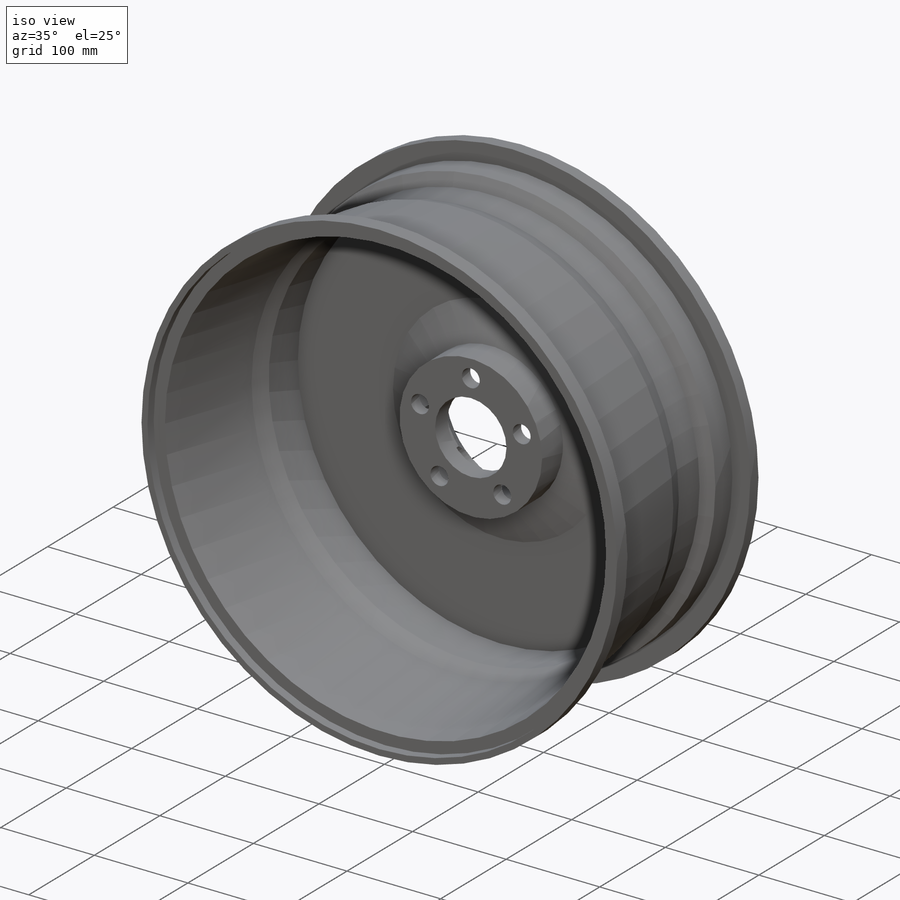
[diagram: iso view]
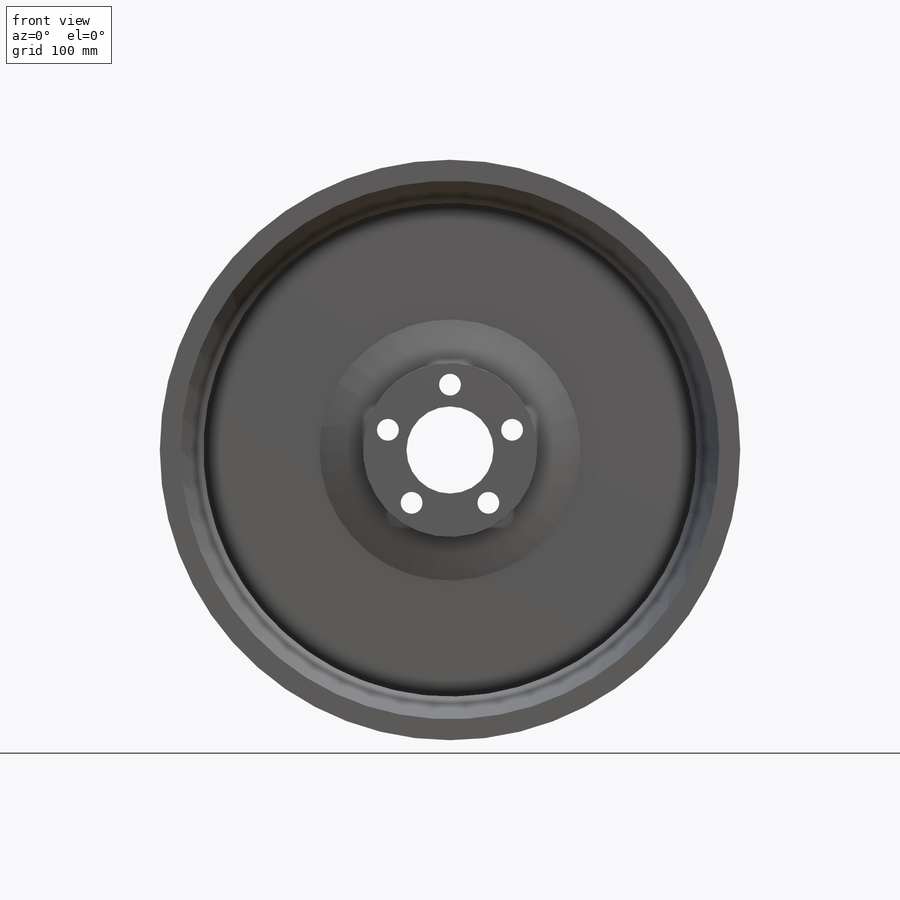
[diagram: front view]
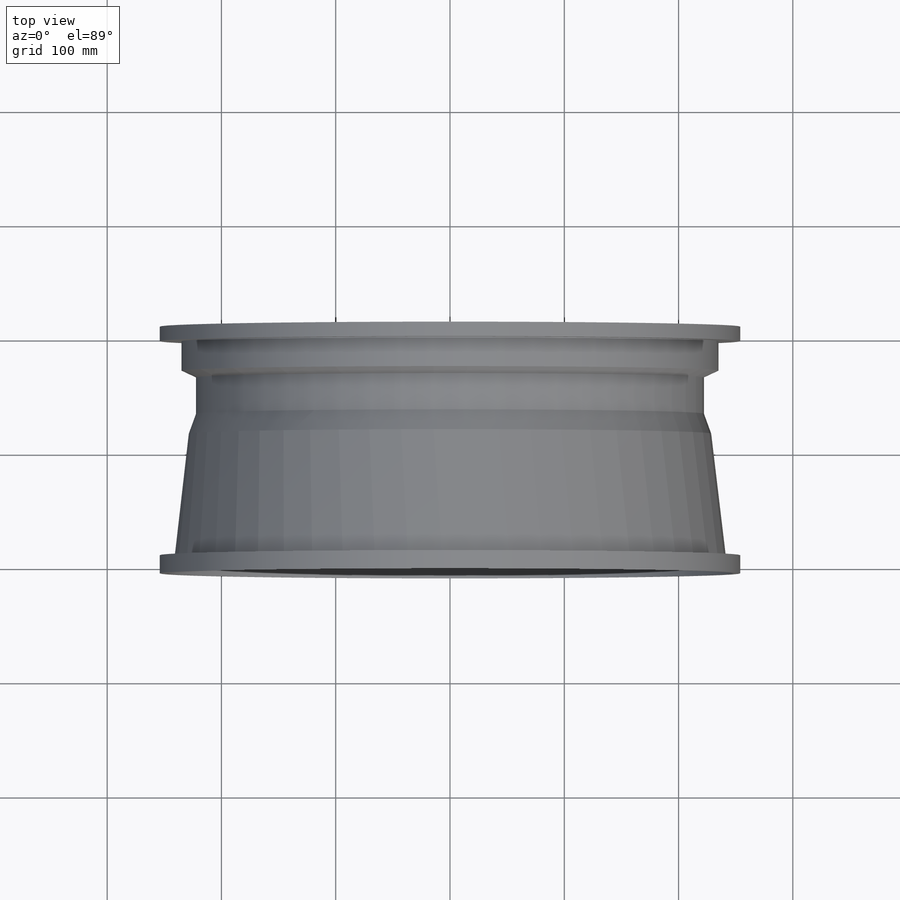
[diagram: top view]
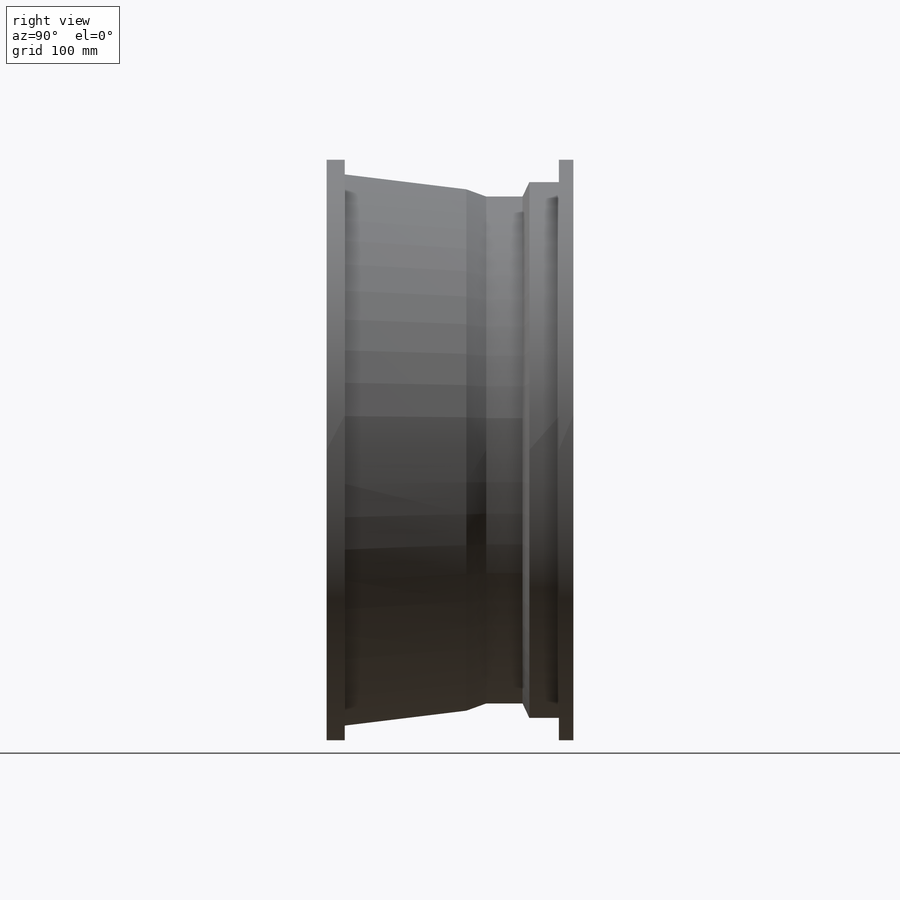
[diagram: right view]
SOLIDWORKS PART (.sldprt)
format: sldprt  version: not decoded by parser v0  size: 604,672 bytes
history: native  units: mm
features: sketch x3, cut_extrude x2, material x1, revolve x1, chamfer x1 (+12 scaffold rows collapsed)
feature tree (20):
  scaffold x12  (default folders/planes/origin — collapsed)
  material  "4032-T6"
  sketch  "Sketch1"  dims[c1.D32=25.4mm c1.D1=241.3mm c1.D2=241.3mm c1.D3=228.6mm c1.D4=6.35mm c1.D5=6.35mm c1.D6=38.1mm c1.D7=69.85mm c1.D8=31.75mm c1.D9=31.75mm c1.D10=25.4mm c1.D11=6.35mm c1.D12=6.35mm c1.D13=57.15mm c1.D14=120.65mm c2.D10=107.95mm c2.D13=25.4mm c2.D14=12.7mm c2.D15=19.05mm c2.D16=12.7mm c2.D17=6.35mm c2.D18=107.95mm c2.D19=6.35mm c2.D20=146.05mm c2.D21=~117.628044mm c3.D21=~93.09004deg c3.D22=9.525mm c3.D7=38.1mm c3.D6=38.1mm c4.D7=38.1mm c4.D14=25.4mm c4.D20=6.35mm c4.D21=6.35mm c4.D23=~26.936771mm c5.D23=20.0deg c5.D24=12.7mm c5.D25=6.35mm c6.D25=160.0deg c6.D26=12.7mm c6.D23=~48.295168mm c7.D23=30.0deg c7.D10=107.95mm c7.D11=19.05mm c8.D11=115.0deg c8.D13=31.75mm c8.D24=12.7mm c8.D27=12.7mm c9.D27=~96.808035deg c10.D27=~14.487881mm c10.D28=76.2mm c10.D29=101.6mm c10.D30=50.8mm c10.D31=6.35mm c10.D33=19.05mm c10.D14=63.5mm c11.D30=31.75mm]
  revolve  "Revolve1"  Angle=360deg
  sketch  "Sketch2"  dims[D1=19.05mm D2=114.3mm D3=5.0]
  cut_extrude  "Cut-Extrude1"  [1 undecoded]
  sketch  "Sketch3"  dims[D2=31.75mm D1=5.0]
  cut_extrude  "Cut-Extrude2"  [1 undecoded]
  chamfer  "Chamfer1"  Distance=6.35mm Angle=45deg
decode coverage: 5 of 7 modeling features carry decoded parameters
note: ~ marks probable driven/reference dimensions
note: 2 parameter values undecoded
note: suppression state not decoded; provenance and decode notes live in map.json
